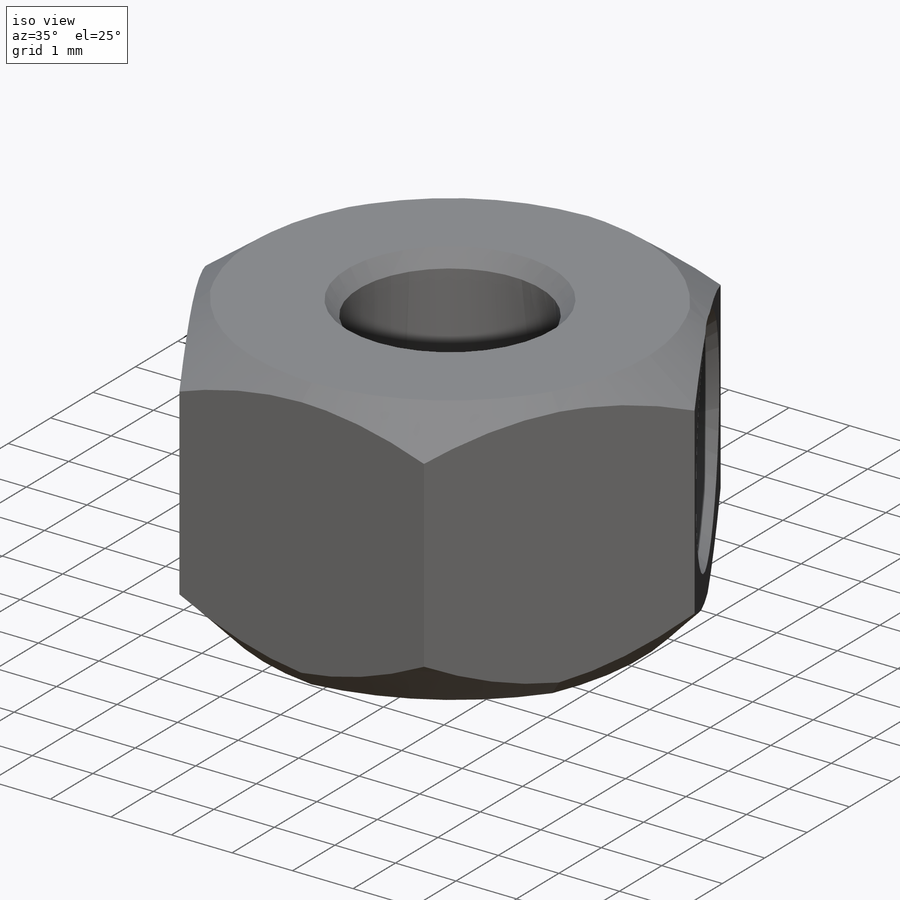
[diagram: iso view]
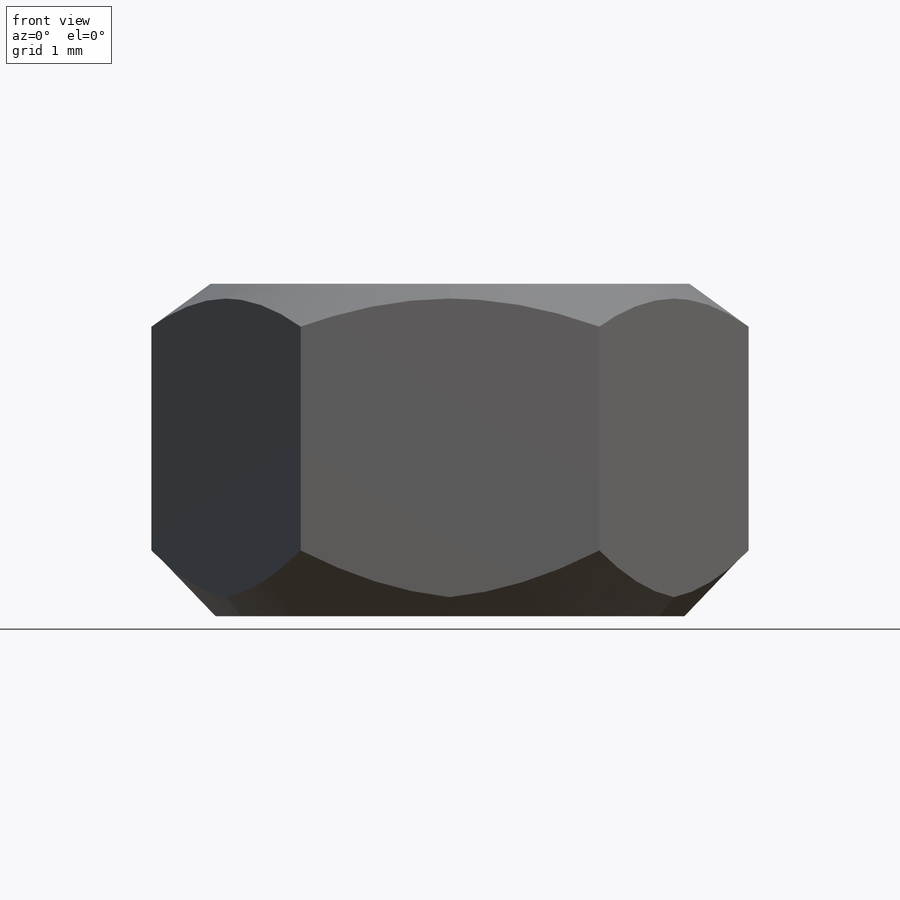
[diagram: front view]
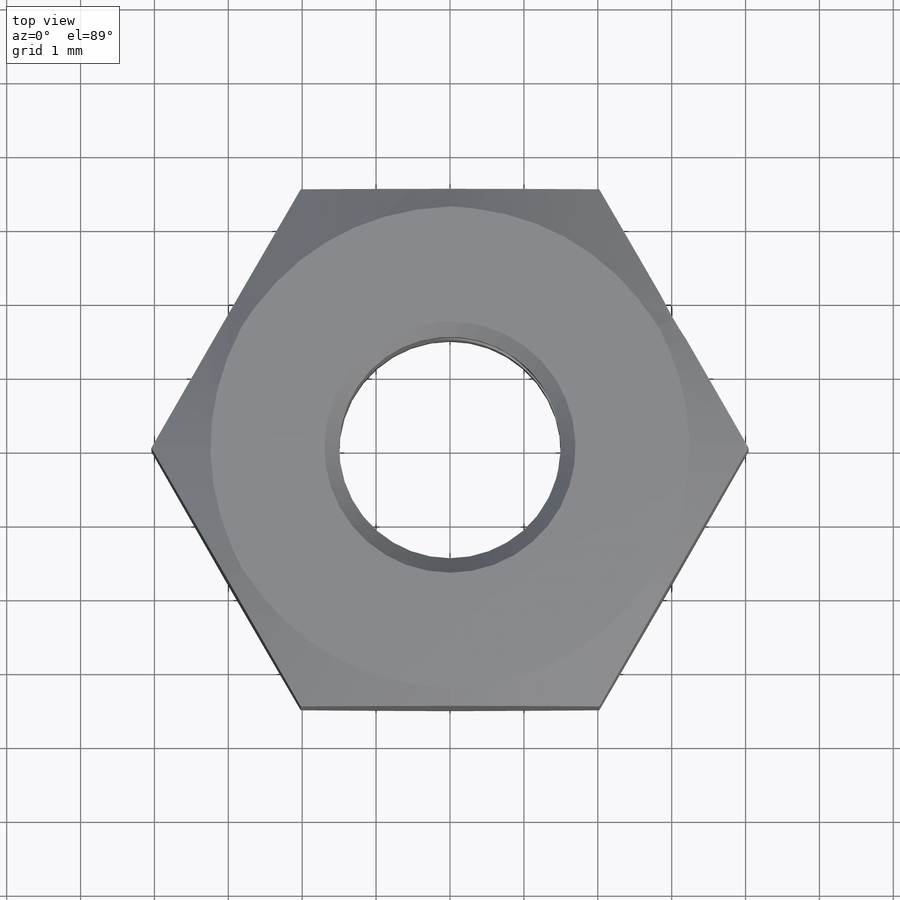
[diagram: top view]
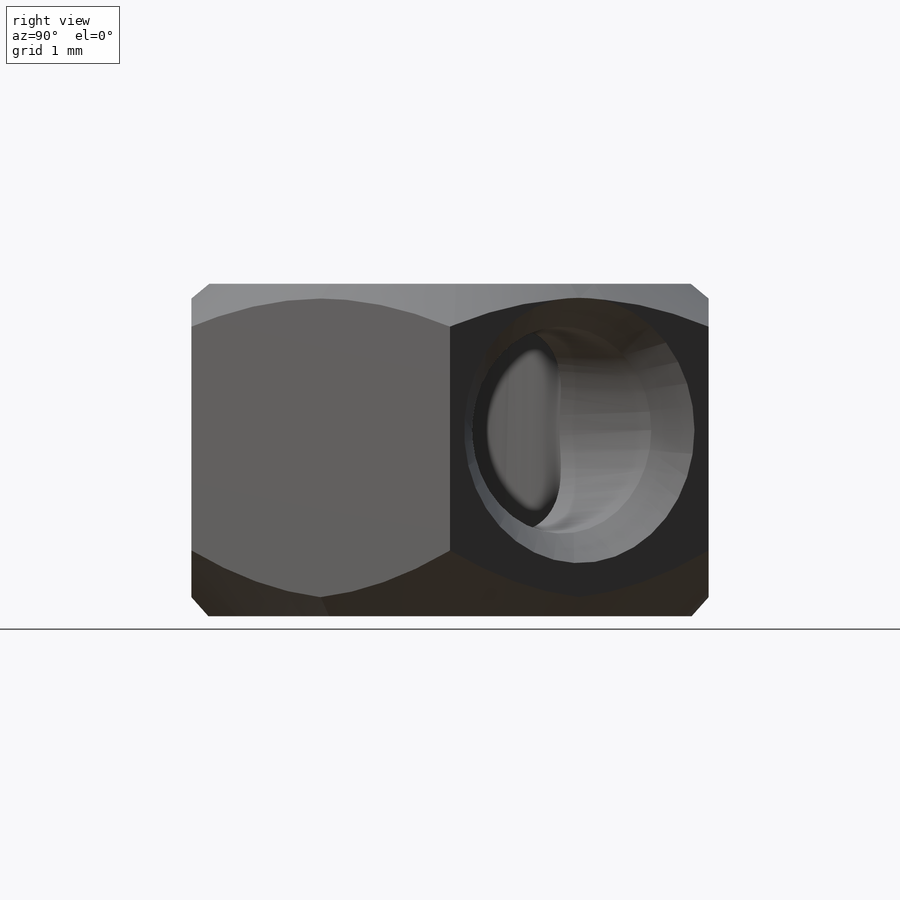
[diagram: right view]
SOLIDWORKS PART (.sldprt)
format: sldprt  version: not decoded by parser v0  size: 291,840 bytes
history: native  units: mm
features: sketch x2, chamfer x2, material x1, extrude x1, cut_extrude x1, fillet x1 (+15 scaffold rows collapsed)
feature tree (23):
  scaffold x15  (default folders/planes/origin — collapsed)
  material  "Ti-8Mn annealed sheet (SS)"
  sketch  "Sketch1"  dims[D1=7.0mm D2=3.0mm]
  extrude  "Boss-Extrude1"  Depth=4.5mm
  chamfer  "Chamfer1"  Distance=0.2mm Angle=50deg
  sketch  "Sketch2"  dims[D1=2.8mm]
  cut_extrude  "Cut-Extrude1"  Depth=3mm
  chamfer  "Chamfer2"  Distance=0.4mm Angle=50deg
  fillet  "Fillet1"  Radius=5.5mm
decode coverage: 7 of 7 modeling features carry decoded parameters
note: suppression state not decoded; provenance and decode notes live in map.json
